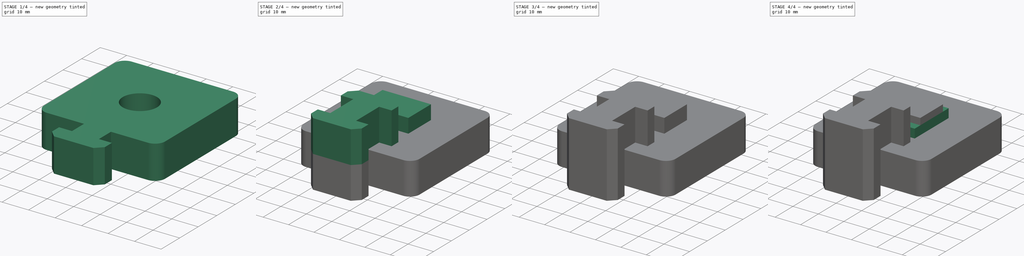
[diagram: build sequence overview — one tinted view per stage of 4, left to right]
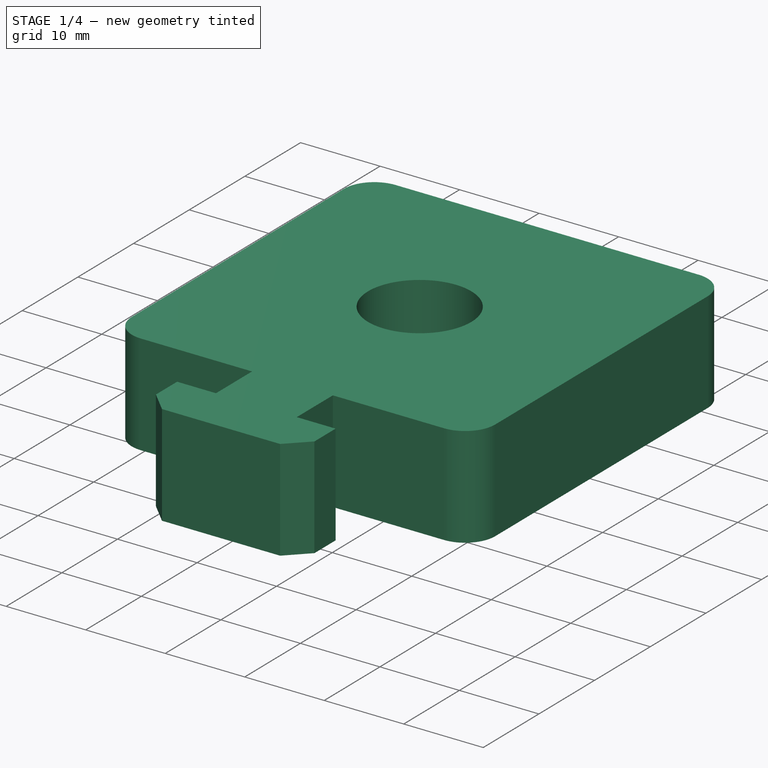
[diagram: stage 1 of 4 — iso view after this stage's code; geometry added in this stage tinted green]
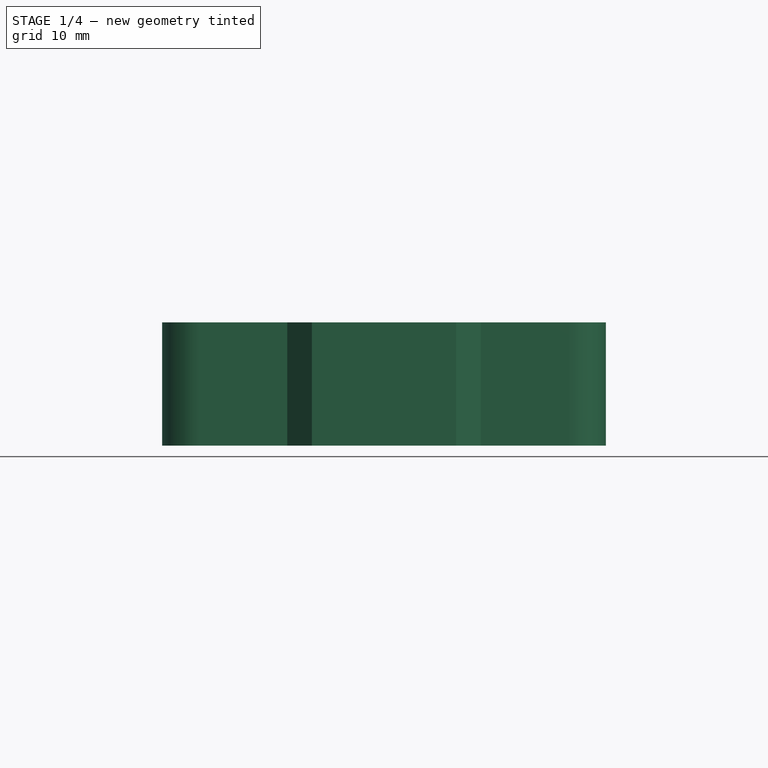
[diagram: stage 1 of 4 — front view after this stage's code; geometry added in this stage tinted green]
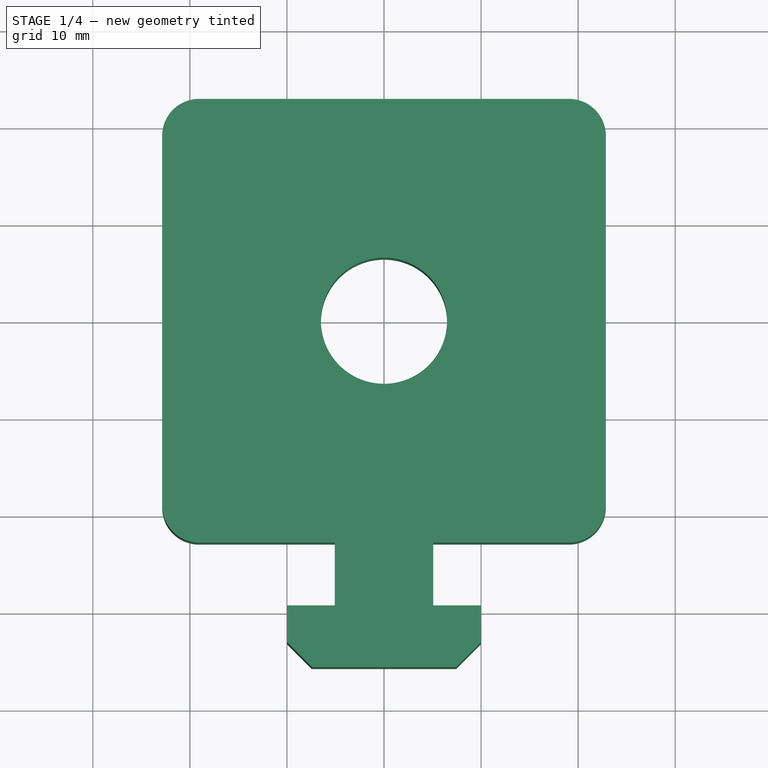
[diagram: stage 1 of 4 — top view after this stage's code; geometry added in this stage tinted green]
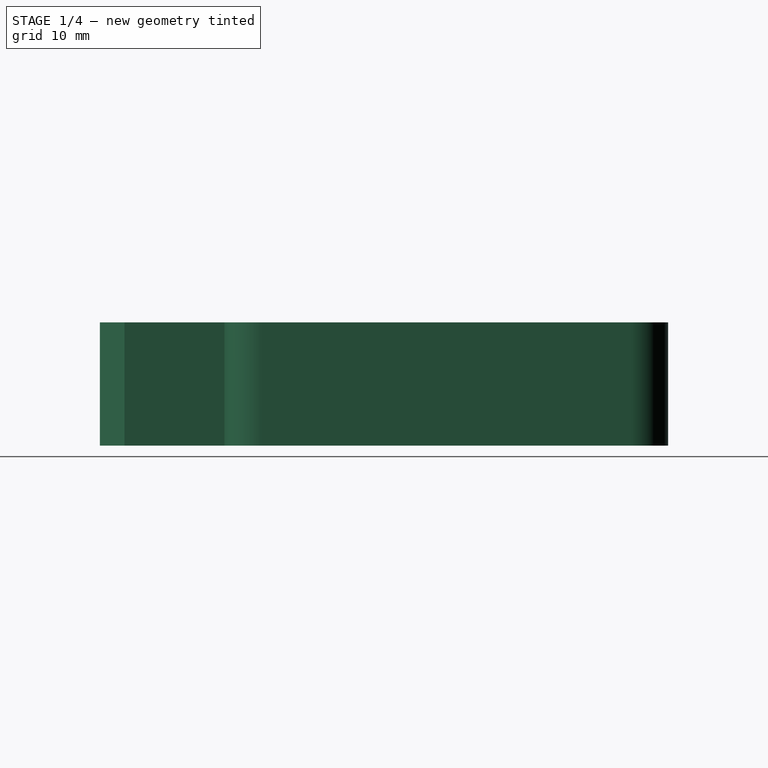
[diagram: stage 1 of 4 — right view after this stage's code; geometry added in this stage tinted green]
FCSTD DOCUMENT  (FreeCAD 0.20R)
Label: t-nuts
License: All rights reserved
LicenseURL: http://en.wikipedia.org/wiki/All_rights_reserved
objects: Sketcher::SketchObject×12, PartDesign::Pad×9, PartDesign::Body×4, PartDesign::Pocket×3, PartDesign::Chamfer×2
note: 44 computed .brp shape members not serialized (recipe doc carries the construction recipe); baked Part::Feature solids carry a one-line shape summary decoded from their .brp

FEATURE [PartDesign::Body] Body002  label="sliding_nut"
  Group = -> [Sketch004,Pad003,Sketch005,Pad004,Sketch006,Pocket001,Sketch007,Pocket002]
  Origin = -> Origin002
  Tip = -> Pocket002
FEATURE [Sketcher::SketchObject] Sketch008
  FullyConstrained = true
  MapMode = 5
  Support = -> [XY_Plane003]
  sketch-geometry (13):
    g0: LineSegment StartX=-19.05 StartY=22.86 StartZ=0 EndX=19.05 EndY=22.86 EndZ=0
    g1: LineSegment StartX=22.86 StartY=19.05 StartZ=0 EndX=22.86 EndY=-19.05 EndZ=0
    g2: LineSegment StartX=19.05 StartY=-22.86 StartZ=0 EndX=-19.05 EndY=-22.86 EndZ=0
    g3: LineSegment StartX=-22.86 StartY=-19.05 StartZ=0 EndX=-22.86 EndY=19.05 EndZ=0
    g4: Circle CenterX=0 CenterY=0 CenterZ=0 NormalX=0 NormalY=0 NormalZ=1 AngleXU=0 Radius=6.5
    g5: ArcOfCircle CenterX=19.05 CenterY=19.05 CenterZ=0 NormalX=0 NormalY=0 NormalZ=1 AngleXU=0 Radius=3.81 StartAngle=0 EndAngle=1.5708
    g6: GeomPoint X=22.86 Y=22.86 Z=0
    g7: ArcOfCircle CenterX=19.05 CenterY=-19.05 CenterZ=0 NormalX=0 NormalY=0 NormalZ=1 AngleXU=0 Radius=3.81 StartAngle=4.71239 EndAngle=6.28319
    g8: GeomPoint X=22.86 Y=-22.86 Z=0
    g9: ArcOfCircle CenterX=-19.05 CenterY=-19.05 CenterZ=0 NormalX=0 NormalY=0 NormalZ=1 AngleXU=0 Radius=3.81 StartAngle=3.14159 EndAngle=4.71239
    g10: GeomPoint X=-22.86 Y=-22.86 Z=0
    g11: ArcOfCircle CenterX=-19.05 CenterY=19.05 CenterZ=0 NormalX=0 NormalY=0 NormalZ=1 AngleXU=0 Radius=3.81 StartAngle=1.5708 EndAngle=3.14159
    g12: GeomPoint X=-22.86 Y=22.86 Z=0
  constraints (29):
    c: Horizontal(g0)
    c: Horizontal(g2)
    c: Vertical(g1)
    c: Vertical(g3)
    c: Symmetric(g6,g10,g-1)
    c: DistanceX(g12,g6) = 45.72
    c: Coincident(g4,g-1)
    c: Diameter(g4) = 13
    c: PointOnObject(g6,g0)
    c: PointOnObject(g6,g1)
    c: Tangent(g0,g5) = 1.5708
    c: Tangent(g1,g5) = 1.5708
    c: PointOnObject(g8,g1)
    c: PointOnObject(g8,g2)
    c: Tangent(g1,g7) = 1.5708
    c: Tangent(g2,g7) = 1.5708
    c: PointOnObject(g10,g3)
    c: PointOnObject(g10,g2)
    c: Tangent(g3,g9) = 1.5708
    c: Tangent(g2,g9) = 1.5708
    c: PointOnObject(g12,g3)
    c: PointOnObject(g12,g0)
    c: Tangent(g3,g11) = 1.5708
    c: Tangent(g0,g11) = 1.5708
    c: Equal(g11,g9)
    c: Equal(g9,g7)
    c: Equal(g7,g5)
    c: Radius(g5) = 3.81
    c: Equal(g0,g1)
FEATURE [PartDesign::Pad] Pad005  label="baseplate"
  Direction = (0,0,1)
  Length = 12.7
  Length2 = 10
  Profile = -> Sketch008
  ReferenceAxis = -> Sketch008 [N_Axis]
  Type = 0
FEATURE [Sketcher::SketchObject] Sketch011
  FullyConstrained = true
  MapMode = 5
  Placement = pos=(0,-22.86,0) rot=(1,0,0;1.5708rad)
  Support = -> [Pad005]
  sketch-geometry (4):
    g0: LineSegment StartX=-5.08 StartY=12.7 StartZ=0 EndX=5.08 EndY=12.7 EndZ=0
    g1: LineSegment StartX=5.08 StartY=12.7 StartZ=0 EndX=5.08 EndY=0 EndZ=0
    g2: LineSegment StartX=5.08 StartY=0 StartZ=0 EndX=-5.08 EndY=0 EndZ=0
    g3: LineSegment StartX=-5.08 StartY=0 StartZ=0 EndX=-5.08 EndY=12.7 EndZ=0
  constraints (11):
    c: Coincident(g0,g1)
    c: Coincident(g1,g2)
    c: Coincident(g2,g3)
    c: Coincident(g3,g0)
    c: Horizontal(g0)
    c: Horizontal(g2)
    c: Vertical(g1)
    c: Vertical(g3)
    c: Symmetric(g1,g2,g-1)
    c: DistanceX(g0,g0) = 10.16
    c: DistanceY(g1,g1) = 12.7
FEATURE [PartDesign::Pad] Pad008  label="standoff"
  BaseFeature = -> Pad005
  Direction = (0,-1,2e-16)
  Length = 6.477
  Length2 = 10
  Profile = -> Sketch011
  ReferenceAxis = -> Sketch011 [N_Axis]
  Type = 0
FEATURE [Sketcher::SketchObject] Sketch012
  FullyConstrained = true
  MapMode = 5
  Placement = pos=(0,-29.337,8.2e-15) rot=(1,0,0;1.5708rad)
  Support = -> [Pad008]
  sketch-geometry (4):
    g0: LineSegment StartX=-9.9695 StartY=12.7 StartZ=0 EndX=9.9695 EndY=12.7 EndZ=0
    g1: LineSegment StartX=9.9695 StartY=12.7 StartZ=0 EndX=9.9695 EndY=0 EndZ=0
    g2: LineSegment StartX=9.9695 StartY=0 StartZ=0 EndX=-9.9695 EndY=0 EndZ=0
    g3: LineSegment StartX=-9.9695 StartY=0 StartZ=0 EndX=-9.9695 EndY=12.7 EndZ=0
  constraints (11):
    c: Coincident(g0,g1)
    c: Coincident(g1,g2)
    c: Coincident(g2,g3)
    c: Coincident(g3,g0)
    c: Horizontal(g0)
    c: Vertical(g1)
    c: Vertical(g3)
    c: PointOnObject(g1,g-1)
    c: DistanceX(g0,g0) = 19.939
    c: Symmetric(g2,g1,g-2)
    c: DistanceY(g1,g1) = 12.7
FEATURE [PartDesign::Pad] Pad009  label="peg"
  BaseFeature = -> Pad008
  Direction = (0,-1,2e-16)
  Length = 6.35
  Length2 = 10
  Profile = -> Sketch012
  ReferenceAxis = -> Sketch012 [N_Axis]
  Type = 0
FEATURE [PartDesign::Chamfer] Chamfer001
  Angle = 45
  Base = -> Pad009 [Edge9,Edge12]
  BaseFeature = -> Pad009
  ChamferType = 0
  FlipDirection = false
  Size = 2.54
  Size2 = 1
  SupportTransform = false
  UseAllEdges = false
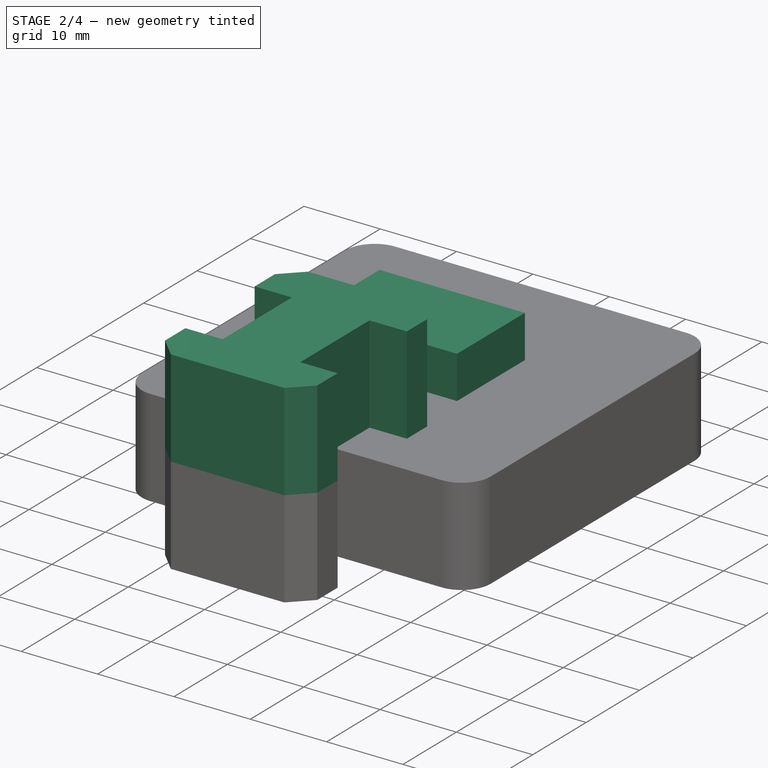
[diagram: stage 2 of 4 — iso view after this stage's code; geometry added in this stage tinted green]
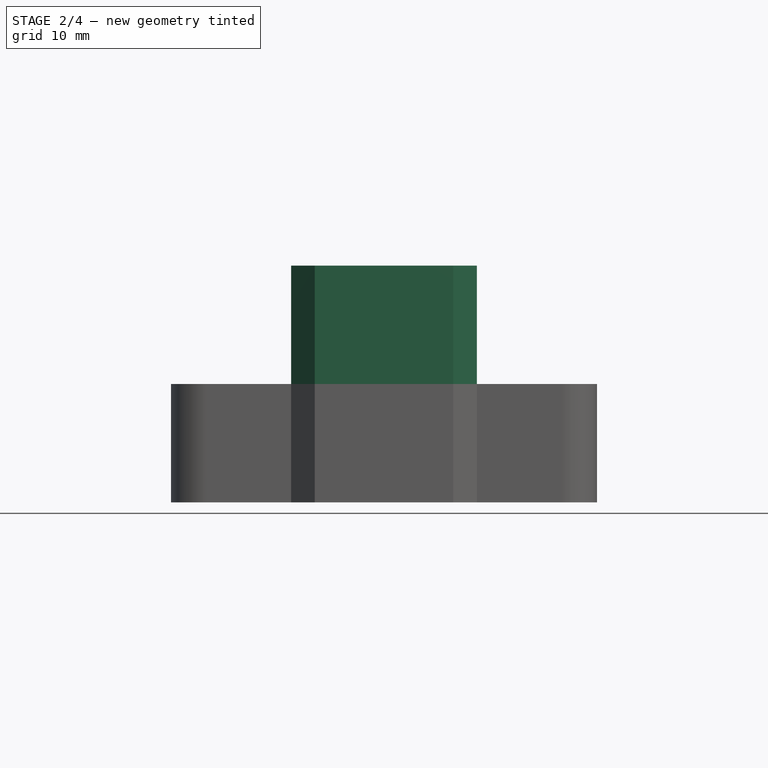
[diagram: stage 2 of 4 — front view after this stage's code; geometry added in this stage tinted green]
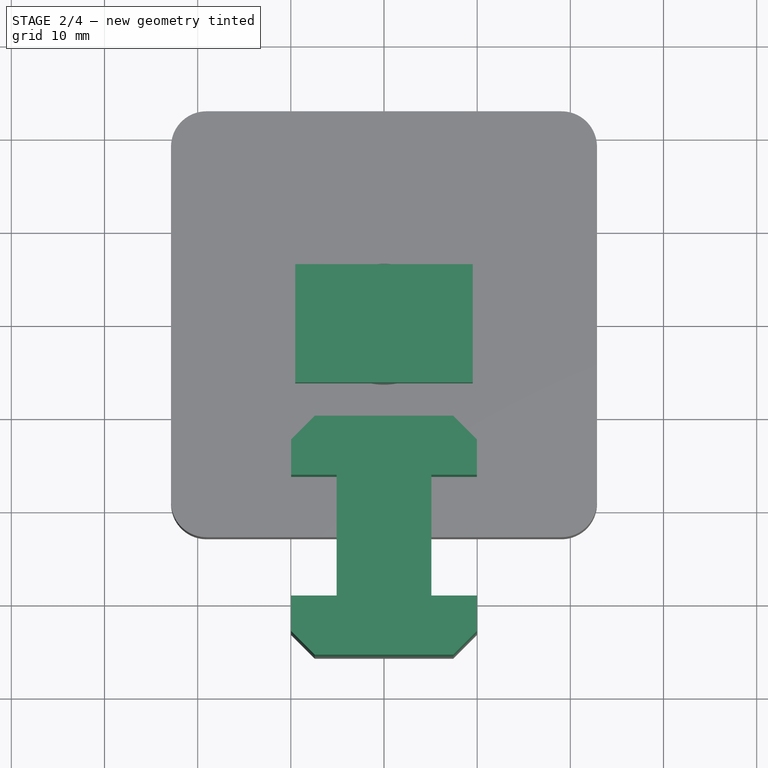
[diagram: stage 2 of 4 — top view after this stage's code; geometry added in this stage tinted green]
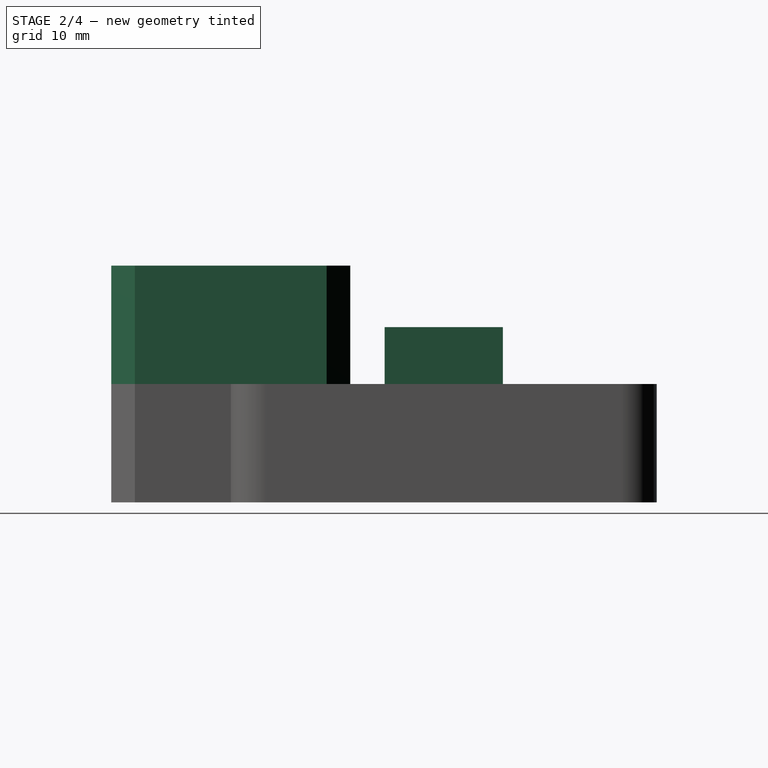
[diagram: stage 2 of 4 — right view after this stage's code; geometry added in this stage tinted green]
FEATURE [PartDesign::Body] Body001  label="vrail_spacer"
  Group = -> [Sketch001,Pad001,Sketch002,Pad002,Sketch003,Pocket]
  Origin = -> Origin001
  Tip = -> Pocket
FEATURE [Sketcher::SketchObject] Sketch004
  FullyConstrained = true
  MapMode = 5
  Support = -> [XY_Plane002]
  sketch-geometry (4):
    g0: LineSegment StartX=-5 StartY=6.35 StartZ=0 EndX=5 EndY=6.35 EndZ=0
    g1: LineSegment StartX=5 StartY=6.35 StartZ=0 EndX=5 EndY=-6.35 EndZ=0
    g2: LineSegment StartX=5 StartY=-6.35 StartZ=0 EndX=-5 EndY=-6.35 EndZ=0
    g3: LineSegment StartX=-5 StartY=-6.35 StartZ=0 EndX=-5 EndY=6.35 EndZ=0
  constraints (11):
    c: Coincident(g0,g1)
    c: Coincident(g1,g2)
    c: Coincident(g2,g3)
    c: Coincident(g3,g0)
    c: Horizontal(g0)
    c: Horizontal(g2)
    c: Vertical(g1)
    c: Vertical(g3)
    c: Symmetric(g0,g2,g-1)
    c: DistanceX(g0,g0) = 10
    c: DistanceY(g1,g1) = 12.7
FEATURE [PartDesign::Pad] Pad003
  Direction = (0,0,1)
  Length = 13.21
  Length2 = 10
  Profile = -> Sketch004
  ReferenceAxis = -> Sketch004 [N_Axis]
  Type = 0
FEATURE [Sketcher::SketchObject] Sketch005
  FullyConstrained = true
  MapMode = 5
  Placement = pos=(0,0,13.21) rot=(0,0,1;0rad)
  Support = -> [Pad003]
  sketch-geometry (4):
    g0: LineSegment StartX=-9.525 StartY=6.35 StartZ=0 EndX=9.525 EndY=6.35 EndZ=0
    g1: LineSegment StartX=9.525 StartY=6.35 StartZ=0 EndX=9.525 EndY=-6.35 EndZ=0
    g2: LineSegment StartX=9.525 StartY=-6.35 StartZ=0 EndX=-9.525 EndY=-6.35 EndZ=0
    g3: LineSegment StartX=-9.525 StartY=-6.35 StartZ=0 EndX=-9.525 EndY=6.35 EndZ=0
  constraints (11):
    c: Coincident(g0,g1)
    c: Coincident(g1,g2)
    c: Coincident(g2,g3)
    c: Coincident(g3,g0)
    c: Horizontal(g0)
    c: Horizontal(g2)
    c: Vertical(g1)
    c: Vertical(g3)
    c: Symmetric(g1,g0,g-1)
    c: DistanceX(g0,g0) = 19.05
    c: DistanceY(g1,g1) = 12.7
FEATURE [PartDesign::Pad] Pad004
  BaseFeature = -> Pad003
  Direction = (0,0,1)
  Length = 5.588
  Length2 = 10
  Profile = -> Sketch005
  ReferenceAxis = -> Sketch005 [N_Axis]
  Type = 0
FEATURE [Sketcher::SketchObject] Sketch013
  ExternalGeometry = -> [Chamfer001]
  FullyConstrained = true
  MapMode = 5
  Placement = pos=(0,0,12.7) rot=(0,0,1;0rad)
  Support = -> [Chamfer001]
  sketch-geometry (17):
    g0: LineSegment StartX=-7.4295 StartY=-10.033 StartZ=0 EndX=7.4295 EndY=-10.033 EndZ=0
    g1: LineSegment StartX=7.4295 StartY=-10.033 StartZ=0 EndX=9.9695 EndY=-12.573 EndZ=0
    g2: LineSegment StartX=9.9695 StartY=-12.573 StartZ=0 EndX=9.9695 EndY=-16.383 EndZ=0
    g3: LineSegment StartX=9.9695 StartY=-16.383 StartZ=0 EndX=5.08 EndY=-16.383 EndZ=0
    g4: LineSegment StartX=5.08 StartY=-29.337 StartZ=0 EndX=9.9695 EndY=-29.337 EndZ=0
    g5: LineSegment StartX=9.9695 StartY=-29.337 StartZ=0 EndX=9.9695 EndY=-33.147 EndZ=0
    g6: LineSegment StartX=9.9695 StartY=-33.147 StartZ=0 EndX=7.4295 EndY=-35.687 EndZ=0
    g7: LineSegment StartX=7.4295 StartY=-35.687 StartZ=0 EndX=-7.4295 EndY=-35.687 EndZ=0
    g8: LineSegment StartX=-9.9695 StartY=-33.147 StartZ=0 EndX=-9.9695 EndY=-29.337 EndZ=0
    g9: LineSegment StartX=-9.9695 StartY=-29.337 StartZ=0 EndX=-5.08 EndY=-29.337 EndZ=0
    g10: LineSegment StartX=-5.08 StartY=-29.337 StartZ=0 EndX=-5.08 EndY=-16.383 EndZ=0
    g11: LineSegment StartX=-5.08 StartY=-16.383 StartZ=0 EndX=-9.9695 EndY=-16.383 EndZ=0
    g12: LineSegment StartX=-9.9695 StartY=-16.383 StartZ=0 EndX=-9.9695 EndY=-12.573 EndZ=0
    g13: LineSegment StartX=-9.9695 StartY=-12.573 StartZ=0 EndX=-7.4295 EndY=-10.033 EndZ=0
    g14: LineSegment StartX=5.08 StartY=-16.383 StartZ=0 EndX=5.08 EndY=-22.86 EndZ=0
    g15: LineSegment StartX=5.08 StartY=-22.86 StartZ=0 EndX=5.08 EndY=-29.337 EndZ=0
    g16: LineSegment StartX=-9.9695 StartY=-33.147 StartZ=0 EndX=-7.4295 EndY=-35.687 EndZ=0
  constraints (48):
    c: Horizontal(g0)
    c: Coincident(g0,g1)
    c: Coincident(g1,g2)
    c: Vertical(g2)
    c: Coincident(g2,g3)
    c: Horizontal(g3)
    c: Coincident(g4,g5)
    c: Coincident(g5,g6)
    c: Coincident(g6,g7)
    c: Horizontal(g7)
    c: Vertical(g8)
    c: Coincident(g8,g9)
    c: Horizontal(g9)
    c: Coincident(g9,g10)
    c: Vertical(g10)
    c: Coincident(g10,g11)
    c: Coincident(g11,g12)
    c: Coincident(g12,g13)
    c: Coincident(g13,g0)
    c: Vertical(g12)
    c: Horizontal(g11)
    c: Horizontal(g10,g3)
    c: Horizontal(g12,g1)
    c: Horizontal(g5,g8)
    c: Symmetric(g9,g4,g-2)
    c: Equal(g3,g11)
    c: Equal(g13,g1)
    c: Equal(g0,g7)
    c: Equal(g2,g5)
    c: Vertical(g6,g0)
    c: Equal(g11,g9)
    c: Coincident(g6,g-4)
    c: Coincident(g5,g-3)
    c: Coincident(g4,g-3)
    c: Coincident(g14,g3)
    c: Coincident(g14,g-5)
    c: Vertical(g14)
    c: Coincident(g15,g14)
    c: Coincident(g15,g4)
    c: Equal(g15,g14)
    c: Coincident(g4,g-5)
    c: DistanceX(g9,g4) = 10.16
    c: DistanceX(g8,g4) = 19.939
    c: DistanceY(g6,g4) = 6.35
    c: Coincident(g16,g8)
    c: Coincident(g16,g7)
    c: Equal(g16,g6)
    c: Equal(g1,g6)
FEATURE [PartDesign::Pad] Pad010  label="additional_lock"
  BaseFeature = -> Chamfer001
  Direction = (0,0,1)
  Length = 12.7
  Length2 = 10
  Profile = -> Sketch013
  ReferenceAxis = -> Sketch013 [N_Axis]
  Type = 0
FEATURE [PartDesign::Body] Body003  label="window_cap"
  Group = -> [Sketch008,Pad005,Sketch011,Pad008,Sketch012,Pad009,Chamfer001,Sketch013,Pad010]
  Origin = -> Origin003
  Tip = -> Pad010
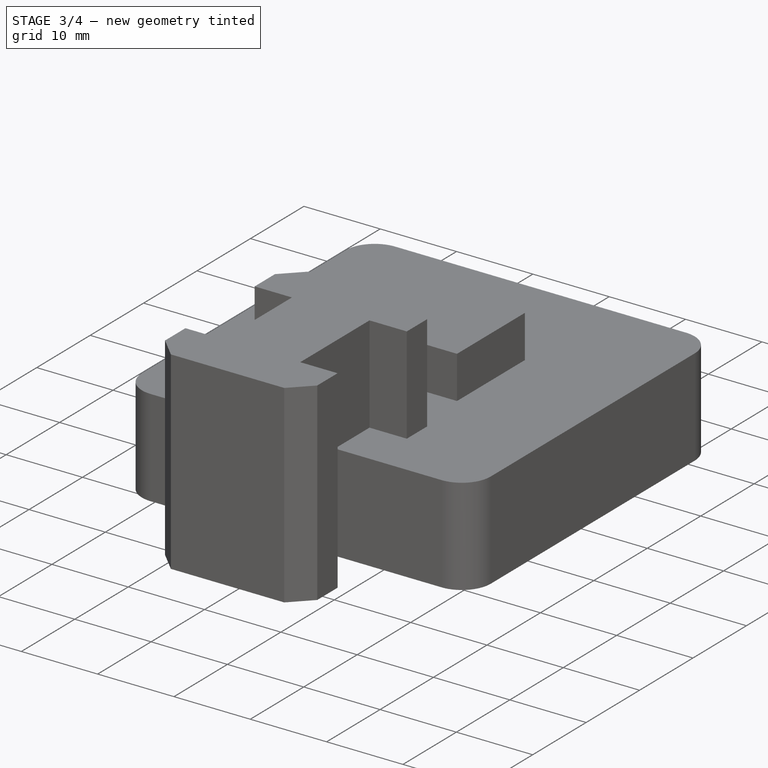
[diagram: stage 3 of 4 — iso view after this stage's code; geometry added in this stage tinted green]
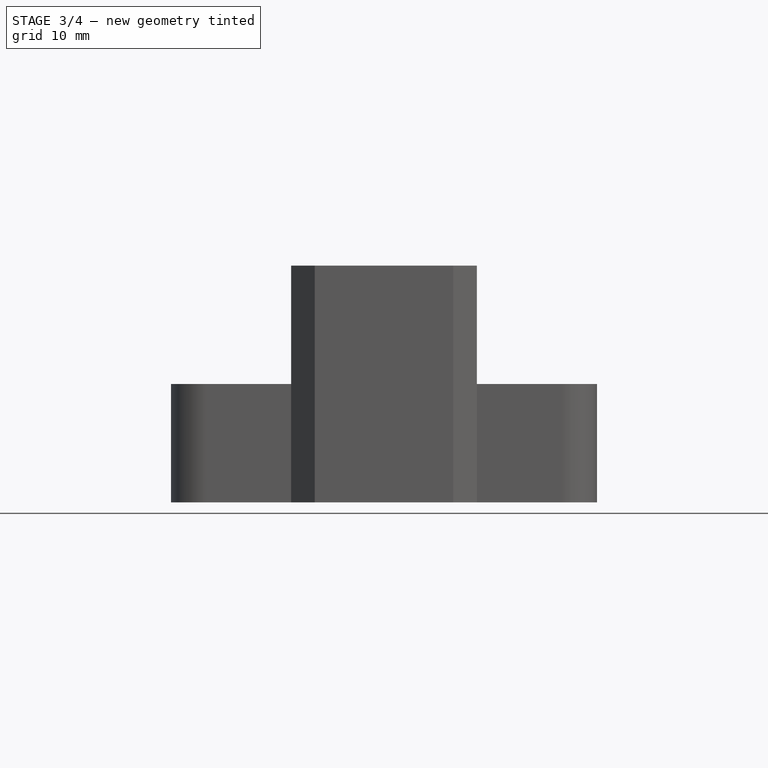
[diagram: stage 3 of 4 — front view after this stage's code; geometry added in this stage tinted green]
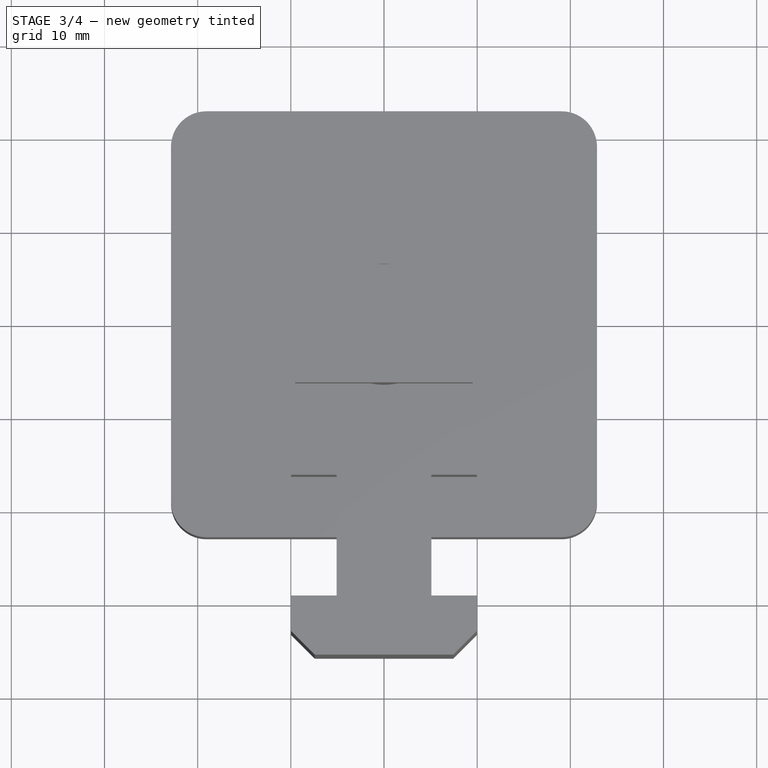
[diagram: stage 3 of 4 — top view after this stage's code; geometry added in this stage tinted green]
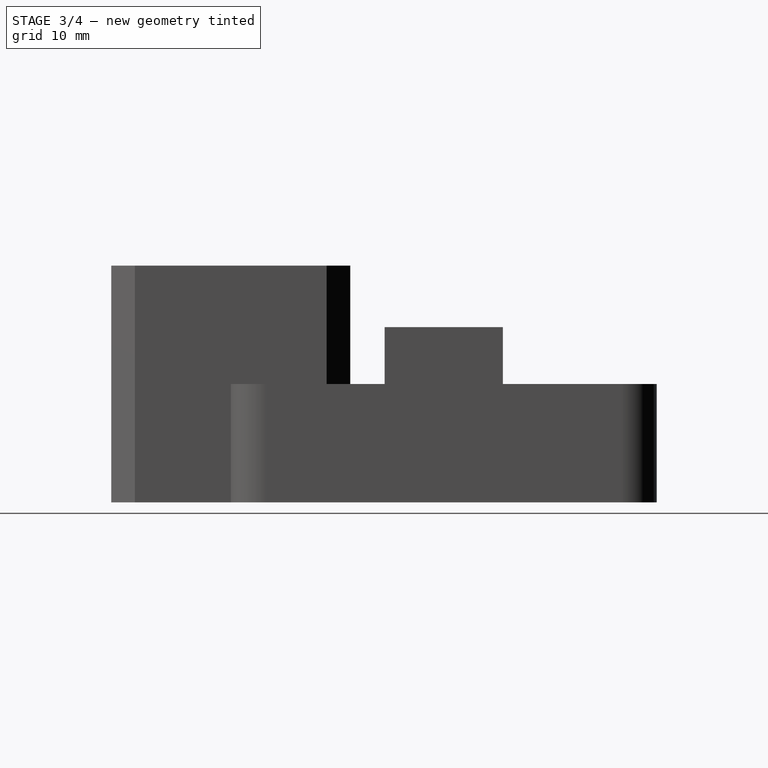
[diagram: stage 3 of 4 — right view after this stage's code; geometry added in this stage tinted green]
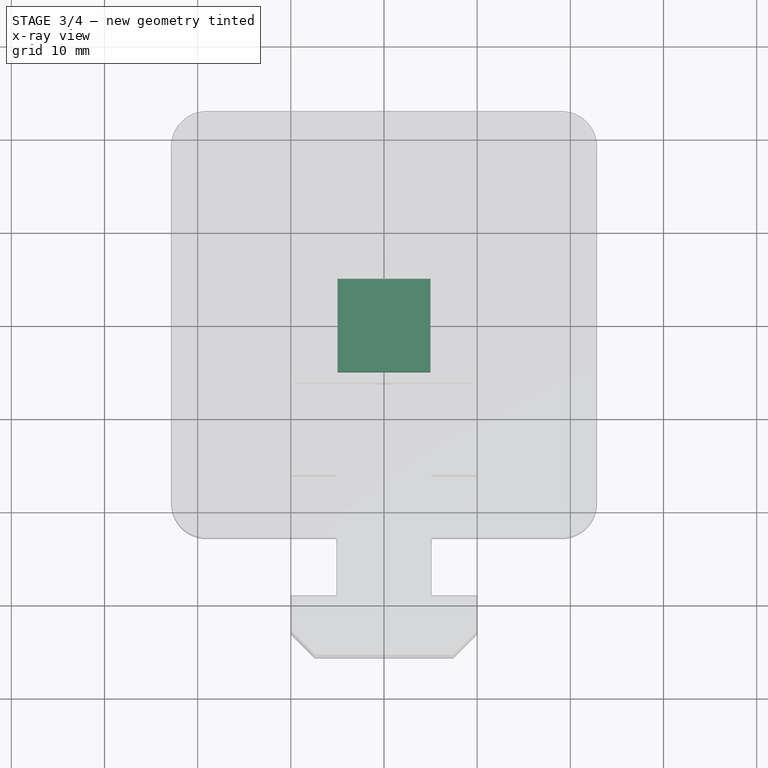
[diagram: stage 3 of 4 — x-ray composite at the top view; earlier geometry ghosted, this stage's added geometry solid]
FEATURE [PartDesign::Body] Body  label="4545_nut_M5"
  Group = -> [Sketch,Pad,Chamfer]
  Origin = -> Origin
  Tip = -> Chamfer
FEATURE [Sketcher::SketchObject] Sketch001
  FullyConstrained = true
  MapMode = 5
  Support = -> [XY_Plane001]
  sketch-geometry (4):
    g0: LineSegment StartX=-5 StartY=5 StartZ=0 EndX=5 EndY=5 EndZ=0
    g1: LineSegment StartX=5 StartY=5 StartZ=0 EndX=5 EndY=-5 EndZ=0
    g2: LineSegment StartX=5 StartY=-5 StartZ=0 EndX=-5 EndY=-5 EndZ=0
    g3: LineSegment StartX=-5 StartY=-5 StartZ=0 EndX=-5 EndY=5 EndZ=0
  constraints (11):
    c: Coincident(g0,g1)
    c: Coincident(g1,g2)
    c: Coincident(g2,g3)
    c: Coincident(g3,g0)
    c: Horizontal(g0)
    c: Horizontal(g2)
    c: Vertical(g1)
    c: Vertical(g3)
    c: Symmetric(g0,g2,g-1)
    c: Equal(g0,g1)
    c: DistanceX(g0,g0) = 10
FEATURE [PartDesign::Pad] Pad001
  Direction = (0,0,1)
  Length = 6.35
  Length2 = 10
  Profile = -> Sketch001
  ReferenceAxis = -> Sketch001 [N_Axis]
  Type = 0
FEATURE [Sketcher::SketchObject] Sketch006
  FullyConstrained = true
  MapMode = 5
  Placement = pos=(0,6.35,0) rot=(0,0.707107,0.707107;3.14159rad)
  Support = -> [Pad004]
  sketch-geometry (1):
    g0: Circle CenterX=0 CenterY=0 CenterZ=0 NormalX=0 NormalY=0 NormalZ=1 AngleXU=0 Radius=3.175
  constraints (2):
    c: Coincident(g0,g-1)
    c: Diameter(g0) = 6.35
FEATURE [PartDesign::Pocket] Pocket001  label="hole001"
  BaseFeature = -> Pad004
  Direction = (0,-1,2e-16)
  Length = 5
  Length2 = 5
  Profile = -> Sketch006
  ReferenceAxis = -> Sketch006 [N_Axis]
  Type = 1
FEATURE [Sketcher::SketchObject] Sketch007
  FullyConstrained = true
  MapMode = 5
  Placement = pos=(0,6.35,0) rot=(0,0.707107,0.707107;3.14159rad)
  Support = -> [Pocket001]
  sketch-geometry (1):
    g0: Circle CenterX=0 CenterY=0 CenterZ=0 NormalX=0 NormalY=0 NormalZ=1 AngleXU=0 Radius=4.572
  constraints (2):
    c: Coincident(g0,g-1)
    c: Diameter(g0) = 9.144
FEATURE [PartDesign::Pocket] Pocket002  label="counterbore"
  BaseFeature = -> Pocket001
  Direction = (0,-1,2e-16)
  Length = 5.33
  Length2 = 5
  Profile = -> Sketch007
  ReferenceAxis = -> Sketch007 [N_Axis]
  Type = 0
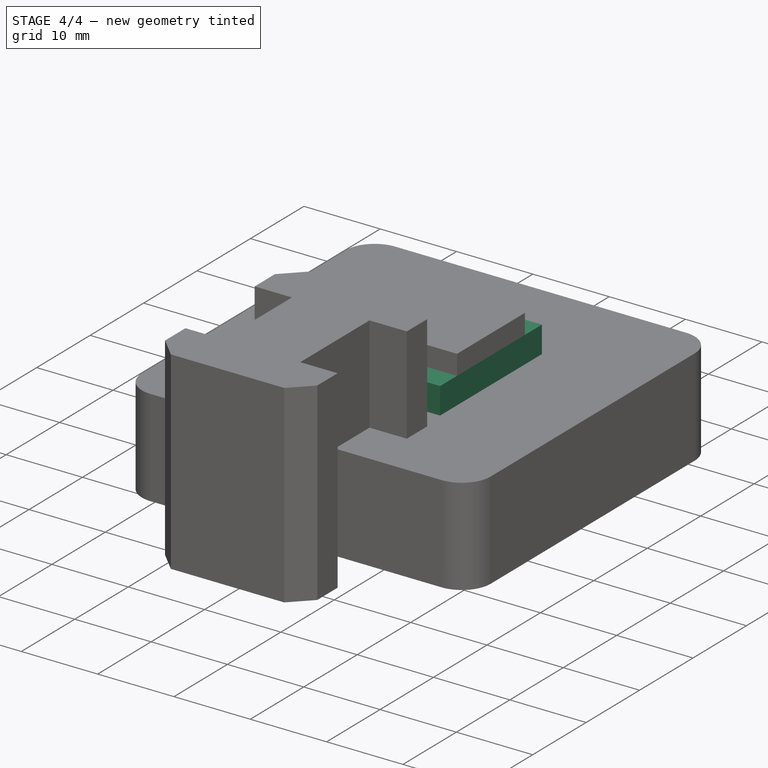
[diagram: stage 4 of 4 — iso view after this stage's code; geometry added in this stage tinted green]
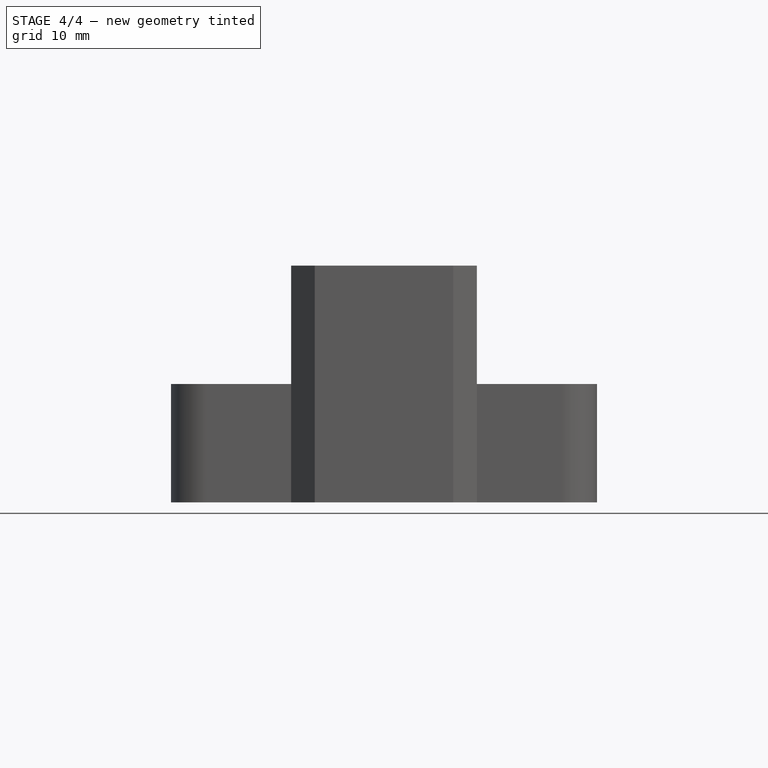
[diagram: stage 4 of 4 — front view after this stage's code; geometry added in this stage tinted green]
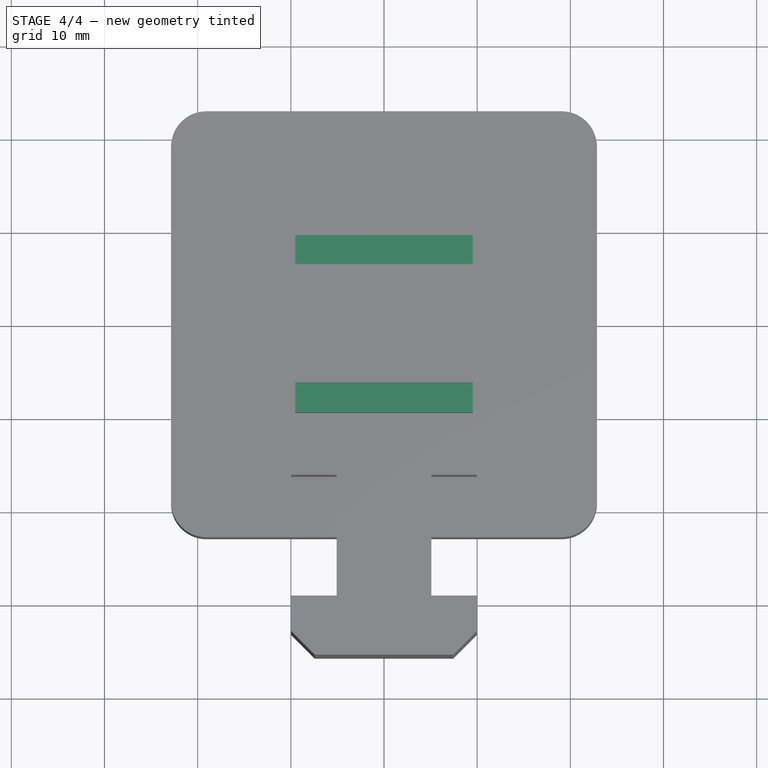
[diagram: stage 4 of 4 — top view after this stage's code; geometry added in this stage tinted green]
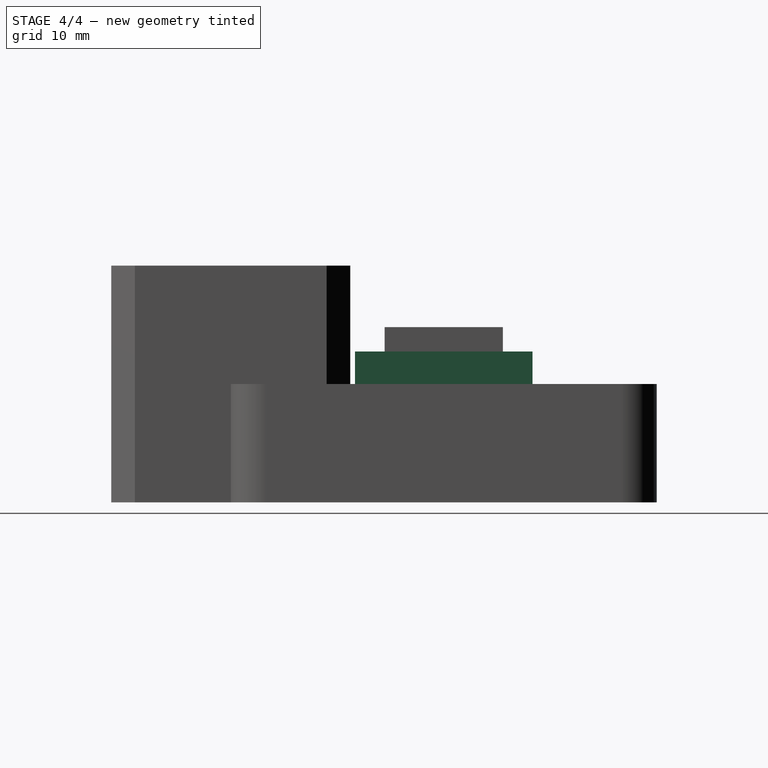
[diagram: stage 4 of 4 — right view after this stage's code; geometry added in this stage tinted green]
FEATURE [Sketcher::SketchObject] Sketch
  FullyConstrained = true
  MapMode = 5
  Support = -> [XY_Plane]
  sketch-geometry (5):
    g0: LineSegment StartX=-9.5 StartY=5 StartZ=0 EndX=9.5 EndY=5 EndZ=0
    g1: LineSegment StartX=9.5 StartY=5 StartZ=0 EndX=9.5 EndY=-5 EndZ=0
    g2: LineSegment StartX=9.5 StartY=-5 StartZ=0 EndX=-9.5 EndY=-5 EndZ=0
    g3: LineSegment StartX=-9.5 StartY=-5 StartZ=0 EndX=-9.5 EndY=5 EndZ=0
    g4: Circle CenterX=0 CenterY=0 CenterZ=0 NormalX=0 NormalY=0 NormalZ=1 AngleXU=0 Radius=2.5
  constraints (13):
    c: Coincident(g0,g1)
    c: Coincident(g1,g2)
    c: Coincident(g2,g3)
    c: Coincident(g3,g0)
    c: Horizontal(g0)
    c: Horizontal(g2)
    c: Vertical(g1)
    c: Vertical(g3)
    c: Symmetric(g0,g2,g-1)
    c: DistanceX(g0,g0) = 19
    c: DistanceY(g3,g3) = 10
    c: Coincident(g4,g-1)
    c: Diameter(g4) = 5
FEATURE [PartDesign::Pad] Pad
  Direction = (0,0,1)
  Length = 5.842
  Length2 = 10
  Profile = -> Sketch
  ReferenceAxis = -> Sketch [N_Axis]
  Type = 0
FEATURE [PartDesign::Chamfer] Chamfer
  Angle = 45
  Base = -> Pad [Edge11,Edge6]
  BaseFeature = -> Pad
  ChamferType = 0
  FlipDirection = false
  Size = 2.54
  Size2 = 1
  SupportTransform = false
  UseAllEdges = false
FEATURE [Sketcher::SketchObject] Sketch002
  FullyConstrained = true
  MapMode = 5
  Placement = pos=(0,0,6.35) rot=(0,0,1;0rad)
  Support = -> [Pad001]
  sketch-geometry (4):
    g0: LineSegment StartX=-9.525 StartY=9.525 StartZ=0 EndX=9.525 EndY=9.525 EndZ=0
    g1: LineSegment StartX=9.525 StartY=9.525 StartZ=0 EndX=9.525 EndY=-9.525 EndZ=0
    g2: LineSegment StartX=9.525 StartY=-9.525 StartZ=0 EndX=-9.525 EndY=-9.525 EndZ=0
    g3: LineSegment StartX=-9.525 StartY=-9.525 StartZ=0 EndX=-9.525 EndY=9.525 EndZ=0
  constraints (11):
    c: Coincident(g0,g1)
    c: Coincident(g1,g2)
    c: Coincident(g2,g3)
    c: Coincident(g3,g0)
    c: Horizontal(g0)
    c: Horizontal(g2)
    c: Vertical(g1)
    c: Vertical(g3)
    c: Equal(g1,g0)
    c: Symmetric(g0,g2,g-1)
    c: DistanceX(g0,g0) = 19.05
FEATURE [PartDesign::Pad] Pad002
  BaseFeature = -> Pad001
  Direction = (0,0,1)
  Length = 9.84
  Length2 = 10
  Profile = -> Sketch002
  ReferenceAxis = -> Sketch002 [N_Axis]
  Type = 0
FEATURE [Sketcher::SketchObject] Sketch003
  FullyConstrained = true
  MapMode = 5
  Placement = pos=(0,0,16.19) rot=(0,0,1;0rad)
  Support = -> [Pad002]
  sketch-geometry (1):
    g0: Circle CenterX=0 CenterY=0 CenterZ=0 NormalX=0 NormalY=0 NormalZ=1 AngleXU=0 Radius=3.25
  constraints (2):
    c: Coincident(g0,g-1)
    c: Diameter(g0) = 6.5
FEATURE [PartDesign::Pocket] Pocket  label="hole"
  BaseFeature = -> Pad002
  Direction = (0,0,-1)
  Length = 5
  Length2 = 5
  Profile = -> Sketch003
  ReferenceAxis = -> Sketch003 [N_Axis]
  Type = 1
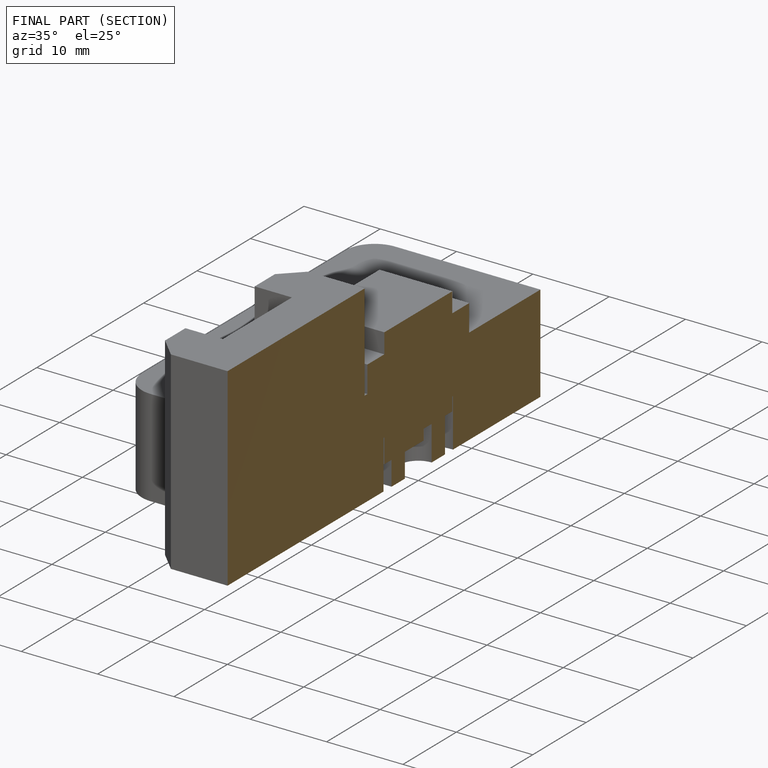
[diagram: finished part — half-section view (interior)]
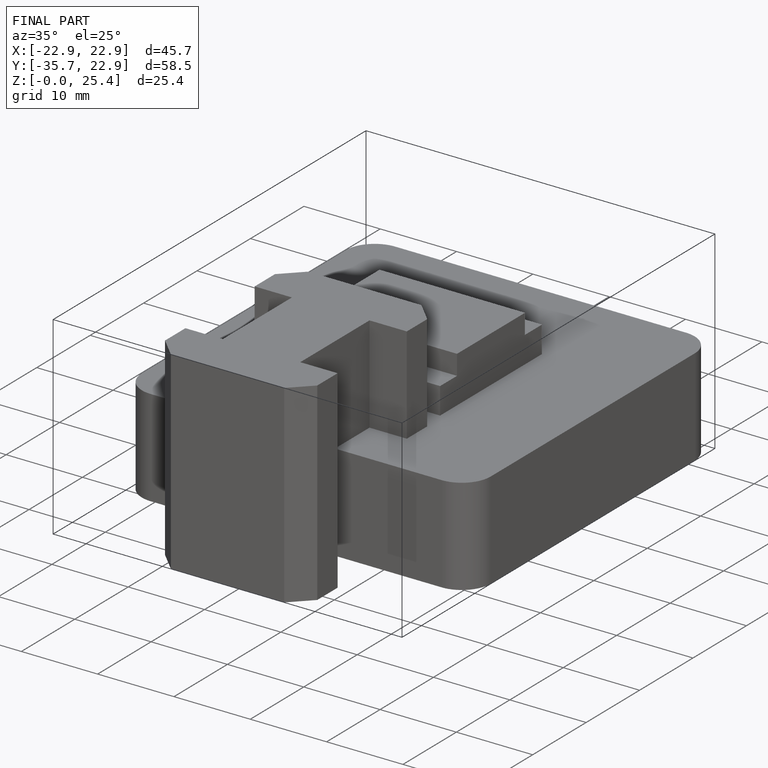
[diagram: finished part — iso view with bounding-box wireframe]
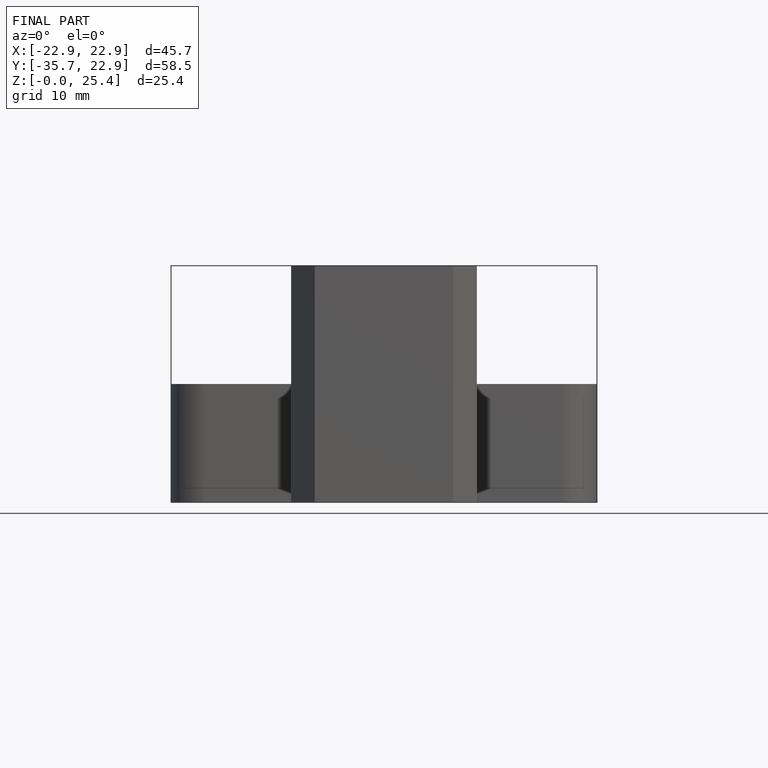
[diagram: finished part — front view with bounding-box wireframe]
